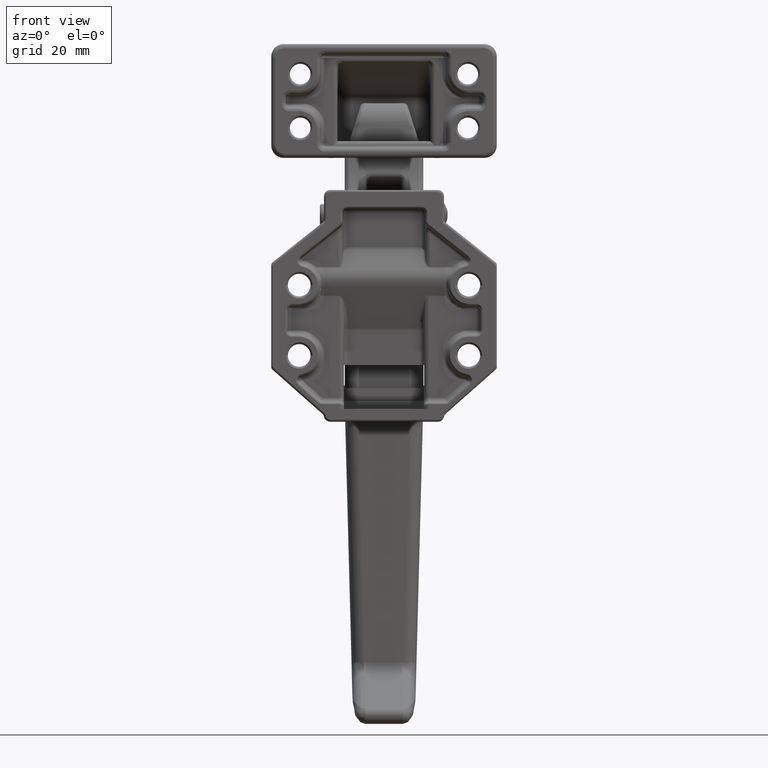
[diagram: clean part render]
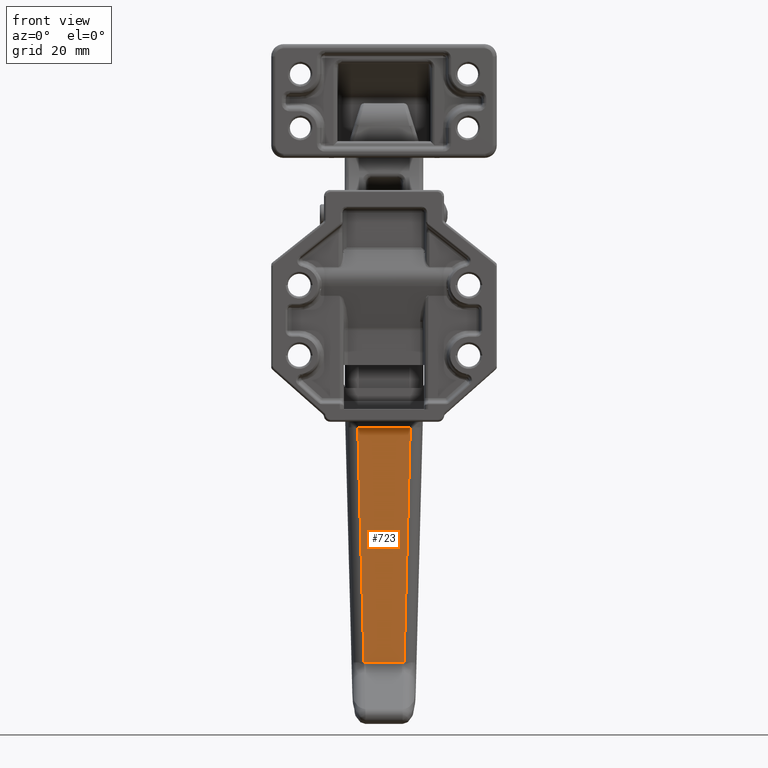
[diagram: same view with one face highlighted and labeled with its STEP entity id]
A machine part, front view. The second image highlights one B-rep face of the part: STEP entity #723.
In plain terms, the highlighted planar face has unit normal (0, 0.9997, 0.0246).
Its self-contained STEP definition (entity closure, byte-faithful):
#723=ADVANCED_FACE('',(#5695),#5694,.F.);
#5694=PLANE('',#17470);
#5695=FACE_OUTER_BOUND('',#17471,.T.);
#17467=CARTESIAN_POINT('',(-7.61053687017E+000,-1.91032607083E+000,-9.64997140054E+001));
#17468=DIRECTION('',(-0.00000000000E+000,9.99659220715E-001,2.61044524946E-002));
#17469=DIRECTION('',(0.00000000000E+000,-2.61044524946E-002,9.99659220715E-001));
#17470=AXIS2_PLACEMENT_3D('',#17467,#17468,#17469);
#17471=EDGE_LOOP('',(#26045,#26046,#26047,#26048));
#26045=ORIENTED_EDGE('',*,*,#29072,.T.);
#26046=ORIENTED_EDGE('',*,*,#29083,.F.);
#26047=ORIENTED_EDGE('',*,*,#29080,.T.);
#26048=ORIENTED_EDGE('',*,*,#29084,.F.);
#29072=EDGE_CURVE('',#37489,#37482,#37490,.T.);
#29080=EDGE_CURVE('',#37544,#37545,#37546,.T.);
#29083=EDGE_CURVE('',#37544,#37482,#37564,.T.);
#29084=EDGE_CURVE('',#37489,#37545,#37570,.T.);
#37482=VERTEX_POINT('',#49739);
#37489=VERTEX_POINT('',#49746);
#37490=LINE('',#49747,#49748);
#37544=VERTEX_POINT('',#49781);
#37545=VERTEX_POINT('',#49782);
#37546=LINE('',#49783,#49784);
#37564=LINE('',#49798,#49799);
#37570=LINE('',#49801,#49802);
#49739=CARTESIAN_POINT('',(-6.34211405699E+000,-3.54139868912E+000,-3.40384621233E+001));
#49746=CARTESIAN_POINT('',(6.34211407477E+000,-3.54139868911E+000,-3.40384621238E+001));
#49747=CARTESIAN_POINT('',(6.34211407477E+000,-3.54139868911E+000,-3.40384621238E+001));
#49748=VECTOR('',#49749,1.26842281318E+001);
#49749=DIRECTION('',(-1.00000000000E+000,-9.58149702112E-013,3.66916683529E-011));
#49781=CARTESIAN_POINT('',(-4.85559245748E+000,-2.05860568404E+000,-9.08214183871E+001));
#49782=CARTESIAN_POINT('',(4.85559245771E+000,-2.05860568404E+000,-9.08214183871E+001));
#49783=CARTESIAN_POINT('',(-4.85559245748E+000,-2.05860568404E+000,-9.08214183871E+001));
#49784=VECTOR('',#49785,9.71118491518E+000);
#49785=DIRECTION('',(1.00000000000E+000,4.19798302888E-014,-1.24677352178E-012));
#49798=CARTESIAN_POINT('',(-4.85559245748E+000,-2.05860568404E+000,-9.08214183871E+001));
#49799=VECTOR('',#49800,5.68217611802E+001);
#49800=DIRECTION('',(-2.61611320846E-002,-2.60955129563E-002,9.99317076494E-001));
#49801=CARTESIAN_POINT('',(6.34211407477E+000,-3.54139868911E+000,-3.40384621238E+001));
#49802=VECTOR('',#49803,5.68217611802E+001);
#49803=DIRECTION('',(-2.61611323935E-002,2.60955129561E-002,-9.99317076485E-001));